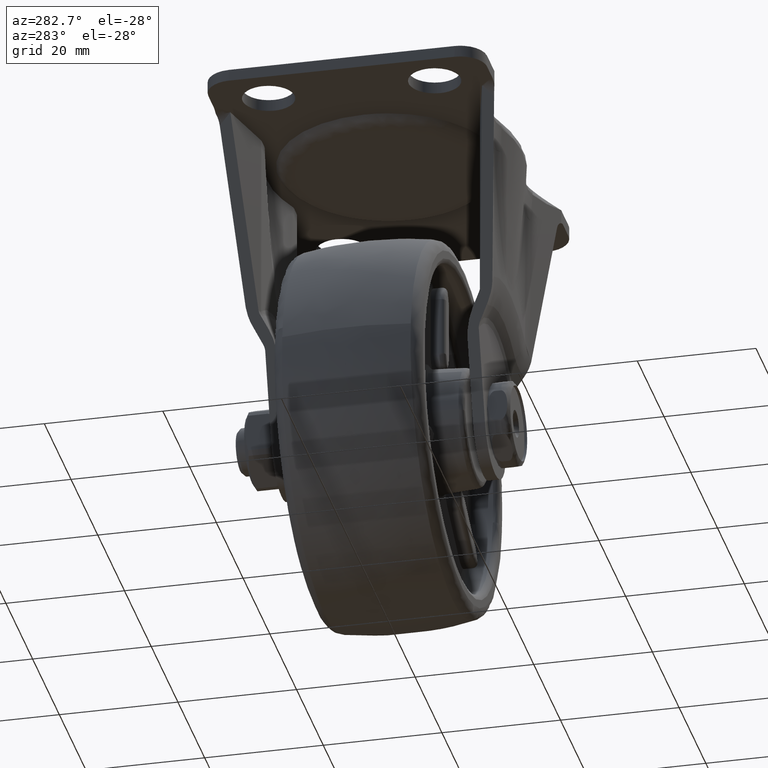
[diagram: clean part render]
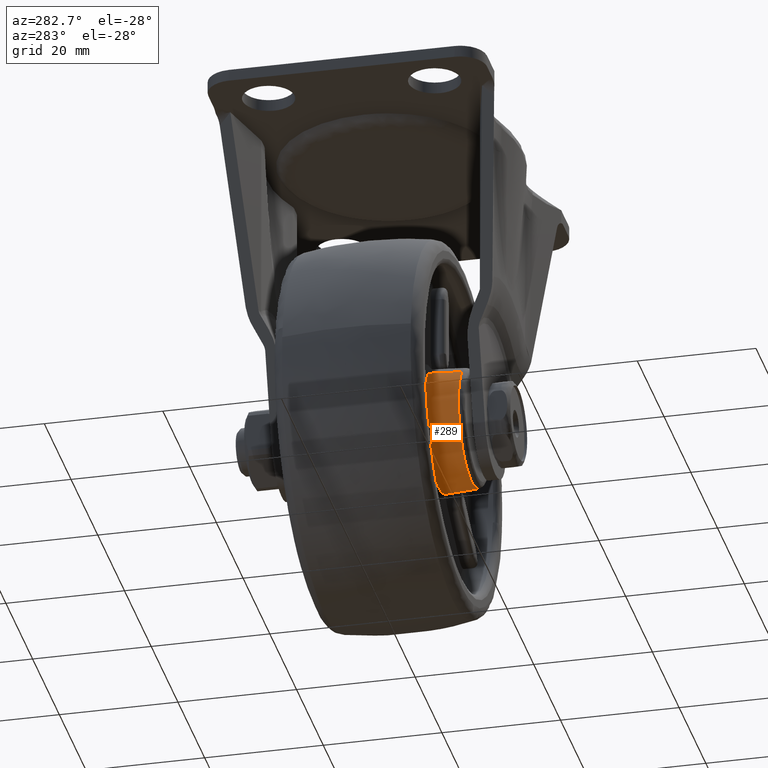
[diagram: same view with one face highlighted and labeled with its STEP entity id]
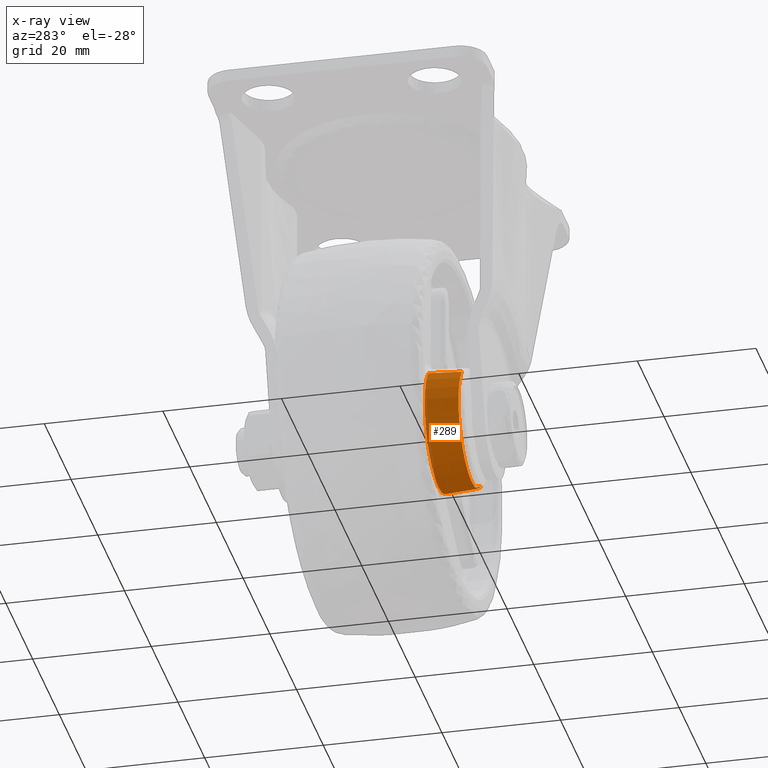
[diagram: x-ray of the same camera — body ghosted, the highlighted face saturated]
A machine part, auxiliary view. The second image highlights one B-rep face of the part: STEP entity #289.
The next image is the same camera in x-ray: the body ghosted, the highlighted face saturated — about 5% of this face is hidden behind the body in this view.
In plain terms, the highlighted face is a freeform B-spline surface patch.
Its self-contained STEP definition (entity closure, byte-faithful):
#68=CARTESIAN_POINT('',(-7.404236452571524,-14.059428582711149,6.718774993431548));
#69=VERTEX_POINT('',#68);
#98=CARTESIAN_POINT('',(7.007853490477124,-14.059430364018191,-7.131244084547937));
#99=VERTEX_POINT('',#98);
#115=CARTESIAN_POINT('',(7.242313552009700,-8.440572121554531,-7.369831812747258));
#116=VERTEX_POINT('',#115);
#117=CARTESIAN_POINT('',(7.007853490477124,-14.059430364018191,-7.131244084547937));
#118=CARTESIAN_POINT('',(7.242313552009700,-8.440572121554531,-7.369831812747258));
#119=QUASI_UNIFORM_CURVE('',1,(#117,#118),.UNSPECIFIED.,.F.,.U.);
#120=EDGE_CURVE('',#99,#116,#119,.T.);
#154=CARTESIAN_POINT('',(-7.651956796300864,-8.440572120883388,6.943564194406813));
#155=VERTEX_POINT('',#154);
#169=CARTESIAN_POINT('',(-7.404236452571524,-14.059428582711149,6.718774993431548));
#170=CARTESIAN_POINT('',(-7.651956796300864,-8.440572120883388,6.943564194406813));
#171=QUASI_UNIFORM_CURVE('',1,(#169,#170),.UNSPECIFIED.,.F.,.U.);
#172=EDGE_CURVE('',#69,#155,#171,.T.);
#177=CARTESIAN_POINT('',(7.001992507234527,-14.199896322333570,-7.125279340897279));
#178=CARTESIAN_POINT('',(-0.123286833662754,-14.199896322333563,-14.127271848131805));
#179=CARTESIAN_POINT('',(-7.125279340897281,-14.199896322333570,-7.001992507234525));
#180=CARTESIAN_POINT('',(-13.737635051263668,-14.199896322333570,-0.273210451404240));
#181=CARTESIAN_POINT('',(-7.398042596262491,-14.199896322333569,6.713156522908715));
#182=CARTESIAN_POINT('',(7.248321578210967,-8.296589014572287,-7.375945624626860));
#183=CARTESIAN_POINT('',(-0.127624046415895,-8.296589014572287,-14.624267202837826));
#184=CARTESIAN_POINT('',(-7.375945624626862,-8.296589014572287,-7.248321578210965));
#185=CARTESIAN_POINT('',(-14.220923040517411,-8.296589014572287,-0.282821955073507));
#186=CARTESIAN_POINT('',(-7.658304651370178,-8.296589014572287,6.949324386256036));
#194=(BOUNDED_SURFACE()B_SPLINE_SURFACE(2,1,((#177,#182),(#178,#183),(#179,#184),(#180,#185),(#181,#186)),.UNSPECIFIED.,.F.,.F.,.U.)B_SPLINE_SURFACE_WITH_KNOTS((3,2,3),(2,2),(0.0,17.134047187323940,33.582732487154928),(0.0,5.913759275357313),.UNSPECIFIED.)GEOMETRIC_REPRESENTATION_ITEM()RATIONAL_B_SPLINE_SURFACE(((1.0,1.0),(0.707106781186548,0.707106781186548),(1.0,1.0),(0.718822509939086,0.718822509939086),(0.977505800795127,0.977505800795127)))REPRESENTATION_ITEM('')SURFACE());
#195=CARTESIAN_POINT('',(-9.860813291847208,-14.059425000186430,-1.651974599554158));
#196=VERTEX_POINT('',#195);
#197=CARTESIAN_POINT('',(-7.404236452571524,-14.059428582711153,6.718774993431548));
#198=CARTESIAN_POINT('',(-9.998232704936950,-14.059427156235017,3.860134723546183));
#199=CARTESIAN_POINT('',(-9.998232772000357,-14.059425635092561,-0.000000025407538));
#200=CARTESIAN_POINT('',(-9.998232786449812,-14.059425307347892,-0.831702933046182));
#201=CARTESIAN_POINT('',(-9.860813291847208,-14.059425000186438,-1.651974599554158));
#209=(BOUNDED_CURVE()B_SPLINE_CURVE(2,(#197,#198,#199,#200,#201),.UNSPECIFIED.,.F.,.U.)B_SPLINE_CURVE_WITH_KNOTS((3,2,3),(0.632319069927223,0.750000000000000,0.778430717347264),.UNSPECIFIED.)CURVE()GEOMETRIC_REPRESENTATION_ITEM()RATIONAL_B_SPLINE_CURVE((0.854055468473251,0.862128214392094,1.0,0.966691342731937,0.940958597623916))REPRESENTATION_ITEM(''));
#210=EDGE_CURVE('',#69,#196,#209,.T.);
#211=ORIENTED_EDGE('',*,*,#210,.F.);
#212=ORIENTED_EDGE('',*,*,#172,.T.);
#213=CARTESIAN_POINT('',(-10.310612584285920,-8.440572119639636,0.675865869034543));
#214=VERTEX_POINT('',#213);
#215=CARTESIAN_POINT('',(-7.651956796300864,-8.440572120883388,6.943564194406813));
#216=CARTESIAN_POINT('',(-10.074781991948001,-8.440572120353036,4.273558819225658));
#217=CARTESIAN_POINT('',(-10.310612584285920,-8.440572119639636,0.675865869034543));
#225=(BOUNDED_CURVE()B_SPLINE_CURVE(2,(#215,#216,#217),.UNSPECIFIED.,.F.,.U.)B_SPLINE_CURVE_WITH_KNOTS((3,3),(0.632319047793085,0.738579497395297),.UNSPECIFIED.)CURVE()GEOMETRIC_REPRESENTATION_ITEM()RATIONAL_B_SPLINE_CURVE((0.854055465436514,0.861344760449333,0.974462543981809))REPRESENTATION_ITEM(''));
#226=EDGE_CURVE('',#155,#214,#225,.T.);
#227=ORIENTED_EDGE('',*,*,#226,.T.);
#228=CARTESIAN_POINT('',(0.0,-8.440572121554531,-10.332740514200720));
#229=VERTEX_POINT('',#228);
#230=CARTESIAN_POINT('',(-10.310612584285918,-8.440572119639636,0.675865869034543));
#231=CARTESIAN_POINT('',(-10.332740514200719,-8.440572121554533,0.338295170114624));
#232=CARTESIAN_POINT('',(-10.332740514200720,-8.440572121554531,1.794263E-015));
#233=CARTESIAN_POINT('',(-10.332740514200720,-8.440572121554531,-10.332740514200719));
#234=CARTESIAN_POINT('',(0.0,-8.440572121554531,-10.332740514200720));
#242=(BOUNDED_CURVE()B_SPLINE_CURVE(2,(#230,#231,#232,#233,#234),.UNSPECIFIED.,.F.,.U.)B_SPLINE_CURVE_WITH_KNOTS((3,2,3),(0.738579497395296,0.750000000000000,1.0),.UNSPECIFIED.)CURVE()GEOMETRIC_REPRESENTATION_ITEM()RATIONAL_B_SPLINE_CURVE((0.974462543981807,0.986620048926564,1.0,0.707106781186548,1.0))REPRESENTATION_ITEM(''));
#243=EDGE_CURVE('',#214,#229,#242,.T.);
#244=ORIENTED_EDGE('',*,*,#243,.T.);
#245=CARTESIAN_POINT('',(0.0,-8.440572121554531,-10.332740514200720));
#246=CARTESIAN_POINT('',(4.227235752709242,-8.440572121554531,-10.332740514200717));
#247=CARTESIAN_POINT('',(7.242313552009715,-8.440572121554531,-7.369831812747247));
#255=(BOUNDED_CURVE()B_SPLINE_CURVE(2,(#245,#246,#247),.UNSPECIFIED.,.F.,.U.)B_SPLINE_CURVE_WITH_KNOTS((3,3),(0.0,0.123683242408909),.UNSPECIFIED.)CURVE()GEOMETRIC_REPRESENTATION_ITEM()RATIONAL_B_SPLINE_CURVE((1.0,0.855096068070280,0.853569641251501))REPRESENTATION_ITEM(''));
#256=EDGE_CURVE('',#229,#116,#255,.T.);
#257=ORIENTED_EDGE('',*,*,#256,.T.);
#258=ORIENTED_EDGE('',*,*,#120,.F.);
#259=CARTESIAN_POINT('',(0.0,-14.059424999999980,-9.998232800000018));
#260=VERTEX_POINT('',#259);
#261=CARTESIAN_POINT('',(0.0,-14.059424999999980,-9.998232800000018));
#262=CARTESIAN_POINT('',(4.090384691110232,-14.059427682009083,-9.998232686116511));
#263=CARTESIAN_POINT('',(7.007853490477125,-14.059430364018192,-7.131244084547937));
#271=(BOUNDED_CURVE()B_SPLINE_CURVE(2,(#261,#262,#263),.UNSPECIFIED.,.F.,.U.)B_SPLINE_CURVE_WITH_KNOTS((3,3),(0.0,0.123683236445333),.UNSPECIFIED.)CURVE()GEOMETRIC_REPRESENTATION_ITEM()RATIONAL_B_SPLINE_CURVE((1.0,0.855096075057045,0.853569641398700))REPRESENTATION_ITEM(''));
#272=EDGE_CURVE('',#260,#99,#271,.T.);
#273=ORIENTED_EDGE('',*,*,#272,.F.);
#274=CARTESIAN_POINT('',(-9.860813291847208,-14.059425000186438,-1.651974599554158));
#275=CARTESIAN_POINT('',(-8.462570975863818,-14.059424999999974,-9.998232800000016));
#276=CARTESIAN_POINT('',(0.0,-14.059424999999980,-9.998232800000018));
#284=(BOUNDED_CURVE()B_SPLINE_CURVE(2,(#274,#275,#276),.UNSPECIFIED.,.F.,.U.)B_SPLINE_CURVE_WITH_KNOTS((3,3),(0.778430717347265,1.0),.UNSPECIFIED.)CURVE()GEOMETRIC_REPRESENTATION_ITEM()RATIONAL_B_SPLINE_CURVE((0.940958597623915,0.740415438454611,1.0))REPRESENTATION_ITEM(''));
#285=EDGE_CURVE('',#196,#260,#284,.T.);
#286=ORIENTED_EDGE('',*,*,#285,.F.);
#287=EDGE_LOOP('',(#211,#212,#227,#244,#257,#258,#273,#286));
#288=FACE_OUTER_BOUND('',#287,.T.);
#289=ADVANCED_FACE('',(#288),#194,.T.);